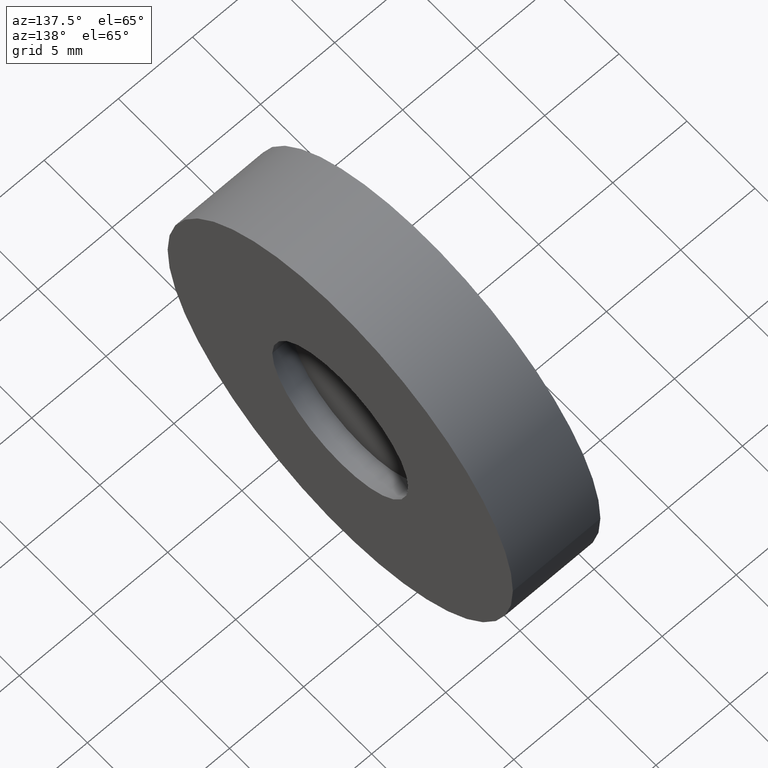
[diagram: clean part render]
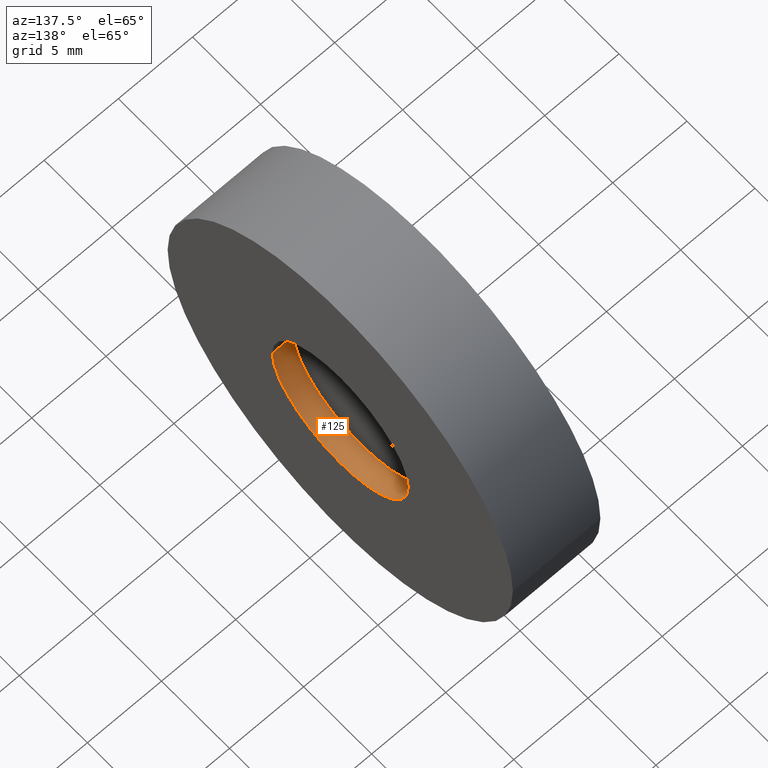
[diagram: same view with one face highlighted and labeled with its STEP entity id]
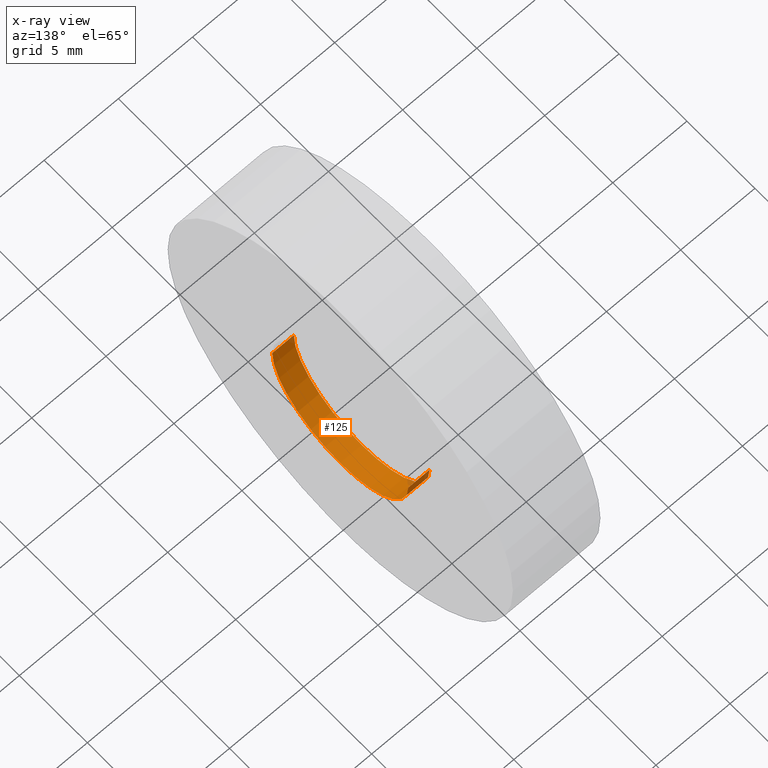
[diagram: x-ray of the same camera — body ghosted, the highlighted face saturated]
A machine part, auxiliary view. The second image highlights one B-rep face of the part: STEP entity #125.
The next image is the same camera in x-ray: the body ghosted, the highlighted face saturated — about 2% of this face is hidden behind the body in this view.
In plain terms, the highlighted cylindrical surface (partial cylindrical patch) has radius 5 mm, axis along (1, 0, 0).
Its self-contained STEP definition (entity closure, byte-faithful):
#5 = LINE ( 'NONE', #113, #573 ) ;
#6 = LINE ( 'NONE', #8, #179 ) ;
#7 = CARTESIAN_POINT ( 'NONE',  ( 1.500000000000000000, -5.000000000000000000, 6.123233995736771213E-16 ) ) ;
#8 = CARTESIAN_POINT ( 'NONE',  ( 2.225000000000000089, -5.000000000000000000, 6.123233995736771213E-16 ) ) ;
#11 = DIRECTION ( 'NONE',  ( 1.000000000000000000, 0.000000000000000000, 0.000000000000000000 ) ) ;
#46 = CARTESIAN_POINT ( 'NONE',  ( 2.949999999999999734, -5.000000000000000000, 6.123233995736771213E-16 ) ) ;
#68 = ORIENTED_EDGE ( 'NONE', *, *, #289, .T. ) ;
#90 = DIRECTION ( 'NONE',  ( 1.000000000000000000, 0.000000000000000000, 0.000000000000000000 ) ) ;
#95 = CARTESIAN_POINT ( 'NONE',  ( 1.500000000000000000, 5.000000000000000000, 0.000000000000000000 ) ) ;
#96 = FACE_OUTER_BOUND ( 'NONE', #220, .T. ) ;
#103 = CARTESIAN_POINT ( 'NONE',  ( 2.949999999999999734, 5.000000000000000000, 0.000000000000000000 ) ) ;
#113 = CARTESIAN_POINT ( 'NONE',  ( 2.225000000000000089, 5.000000000000000000, 0.000000000000000000 ) ) ;
#117 = EDGE_CURVE ( 'NONE', #589, #225, #309, .T. ) ;
#125 = ADVANCED_FACE ( 'NONE', ( #96 ), #295, .F. ) ;
#133 = ORIENTED_EDGE ( 'NONE', *, *, #656, .F. ) ;
#179 = VECTOR ( 'NONE', #630, 1000.000000000000000 ) ;
#196 = DIRECTION ( 'NONE',  ( 1.000000000000000000, 0.000000000000000000, 0.000000000000000000 ) ) ;
#206 = ORIENTED_EDGE ( 'NONE', *, *, #117, .F. ) ;
#220 = EDGE_LOOP ( 'NONE', ( #206, #68, #489, #133 ) ) ;
#225 = VERTEX_POINT ( 'NONE', #95 ) ;
#226 = CIRCLE ( 'NONE', #431, 5.000000000000000000 ) ;
#252 = CARTESIAN_POINT ( 'NONE',  ( 2.949999999999999734, 0.000000000000000000, 0.000000000000000000 ) ) ;
#258 = AXIS2_PLACEMENT_3D ( 'NONE', #652, #90, #548 ) ;
#289 = EDGE_CURVE ( 'NONE', #589, #435, #6, .T. ) ;
#295 = CYLINDRICAL_SURFACE ( 'NONE', #258, 5.000000000000000000 ) ;
#309 = CIRCLE ( 'NONE', #547, 5.000000000000000000 ) ;
#312 = DIRECTION ( 'NONE',  ( 1.000000000000000000, 0.000000000000000000, 0.000000000000000000 ) ) ;
#415 = DIRECTION ( 'NONE',  ( 0.000000000000000000, 0.000000000000000000, -1.000000000000000000 ) ) ;
#431 = AXIS2_PLACEMENT_3D ( 'NONE', #252, #11, #415 ) ;
#435 = VERTEX_POINT ( 'NONE', #46 ) ;
#489 = ORIENTED_EDGE ( 'NONE', *, *, #520, .T. ) ;
#520 = EDGE_CURVE ( 'NONE', #435, #649, #226, .T. ) ;
#547 = AXIS2_PLACEMENT_3D ( 'NONE', #661, #196, #613 ) ;
#548 = DIRECTION ( 'NONE',  ( 0.000000000000000000, 1.000000000000000000, 0.000000000000000000 ) ) ;
#573 = VECTOR ( 'NONE', #312, 1000.000000000000000 ) ;
#589 = VERTEX_POINT ( 'NONE', #7 ) ;
#613 = DIRECTION ( 'NONE',  ( 0.000000000000000000, 0.000000000000000000, -1.000000000000000000 ) ) ;
#630 = DIRECTION ( 'NONE',  ( 1.000000000000000000, 0.000000000000000000, 0.000000000000000000 ) ) ;
#649 = VERTEX_POINT ( 'NONE', #103 ) ;
#652 = CARTESIAN_POINT ( 'NONE',  ( 2.225000000000000089, 0.000000000000000000, 0.000000000000000000 ) ) ;
#656 = EDGE_CURVE ( 'NONE', #225, #649, #5, .T. ) ;
#661 = CARTESIAN_POINT ( 'NONE',  ( 1.500000000000000000, 0.000000000000000000, 0.000000000000000000 ) ) ;